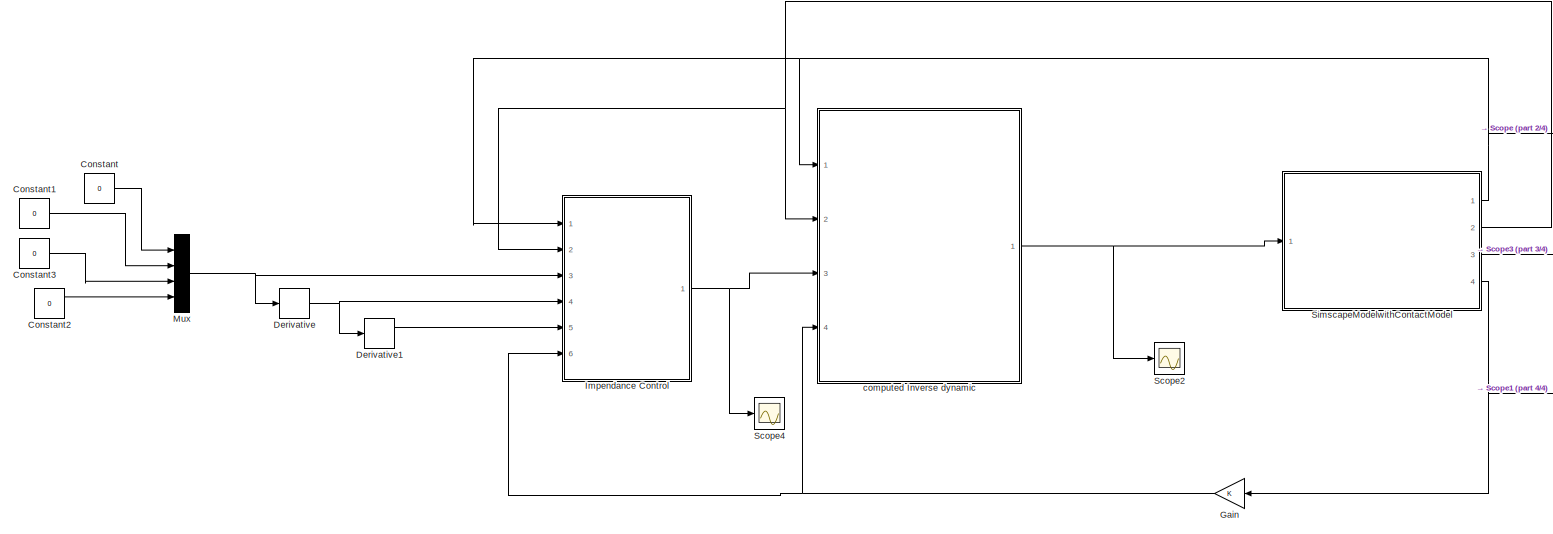
[diagram: root canvas - part 1/4, most of the canvas]
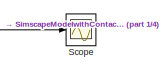
[diagram: root canvas - part 2/4, top right region]
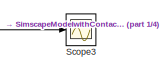
[diagram: root canvas - part 3/4, middle right region]
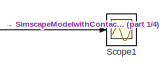
[diagram: root canvas - part 4/4, bottom right region]
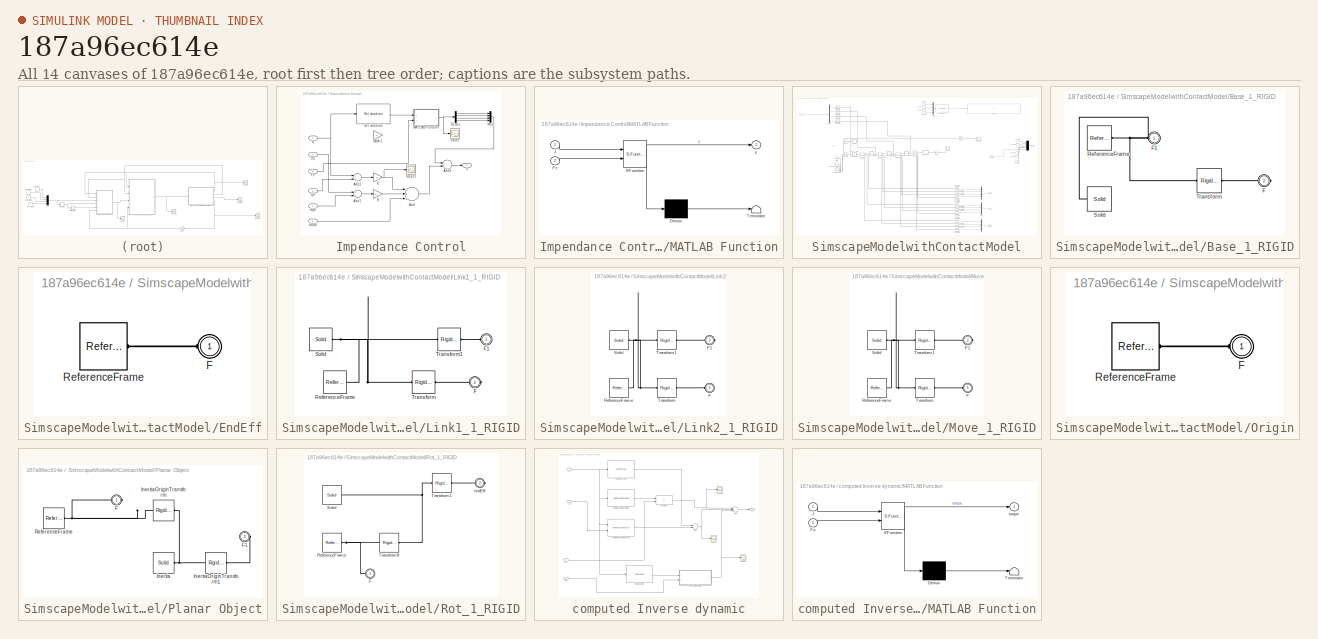
[diagram: thumbnail index - all 14 canvases of the model, root first then tree order]
MODEL slx_187a96ec614e
KIND model
CONFIG AbsTol = auto
CONFIG EnableMultiTasking = off
CONFIG FixedStep = auto
CONFIG MaxStep = 0.001
CONFIG MinStep = 0.0001
CONFIG RelTol = 1e-3
CONFIG SampleTimeConstraint = Unconstrained
CONFIG Solver = VariableStepAuto
CONFIG SolverName = VariableStepAuto
CONFIG StartTime = 0.0
CONFIG StopTime = 10.0
WORKSPACE source: MAT-file member
WORKSPACE Ball: struct (value not decoded)
BLOCK [Constant] Constant
  Value = 0
BLOCK [Constant] Constant1
  Value = 0
BLOCK [Constant] Constant2
  Value = 0
BLOCK [Constant] Constant3
  Value = 0
BLOCK [Derivative] Derivative
BLOCK [Derivative] Derivative1
BLOCK [Gain] Gain
  OutDataTypeStr = Inherit: Inherit via internal rule
  ParamDataTypeStr = Inherit: Inherit via internal rule
  SaturateOnIntegerOverflow = off
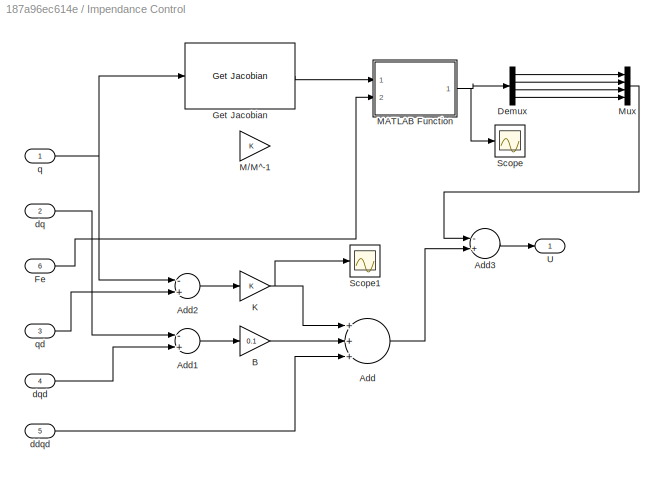
BLOCK [SubSystem] Impendance Control
  Ports = [6, 1]
  RequestExecContextInheritance = off
BLOCK [Sum] Impendance Control/Add
  InputSameDT = off
  Inputs = +++
  OutDataTypeStr = Inherit: Inherit via internal rule
  Ports = [3, 1]
  SaturateOnIntegerOverflow = off
BLOCK [Sum] Impendance Control/Add1
  InputSameDT = off
  Inputs = -+
  OutDataTypeStr = Inherit: Inherit via internal rule
  Ports = [2, 1]
  SaturateOnIntegerOverflow = off
BLOCK [Sum] Impendance Control/Add2
  InputSameDT = off
  Inputs = -+
  OutDataTypeStr = Inherit: Inherit via internal rule
  Ports = [2, 1]
  SaturateOnIntegerOverflow = off
BLOCK [Sum] Impendance Control/Add3
  InputSameDT = off
  Inputs = -+
  OutDataTypeStr = Inherit: Inherit via internal rule
  Ports = [2, 1]
  SaturateOnIntegerOverflow = off
BLOCK [Gain] Impendance Control/B
  Gain = 0.1
  OutDataTypeStr = Inherit: Inherit via internal rule
  ParamDataTypeStr = Inherit: Inherit via internal rule
  SaturateOnIntegerOverflow = off
BLOCK [Demux] Impendance Control/Demux
  DisplayOption = bar
  Ports = [1, 4]
BLOCK [Inport] Impendance Control/Fe
  IconDisplay = Port number
  Port = 6
BLOCK [Reference] Impendance Control/Get Jacobian  REF=robotmaniplib/Get Jacobian
  Ports = [1, 1]
  SourceBlock = robotmaniplib/Get Jacobian
  SourceProductName = Robotics System Toolbox
  SourceType = Get Jacobian
BLOCK [Gain] Impendance Control/K
  OutDataTypeStr = Inherit: Inherit via internal rule
  ParamDataTypeStr = Inherit: Inherit via internal rule
  SaturateOnIntegerOverflow = off
BLOCK [Gain] Impendance Control/M//M^-1
  OutDataTypeStr = Inherit: Inherit via internal rule
  ParamDataTypeStr = Inherit: Inherit via internal rule
  SaturateOnIntegerOverflow = off
BLOCK [SubSystem] Impendance Control/MATLAB Function
  ErrorFcn = Stateflow.Translate.translate
  PermitHierarchicalResolution = ExplicitOnly
  Ports = [2, 1]
  RequestExecContextInheritance = off
  SFBlockType = MATLAB Function
  TreatAsAtomicUnit = on
BLOCK [Demux] Impendance Control/MATLAB Function/ Demux 
  Outputs = 1
  Ports = [1, 1]
BLOCK [S-Function] Impendance Control/MATLAB Function/ SFunction 
  EnableBusSupport = on
  FunctionName = sf_sfun
  PortCounts = [2 2]
  Ports = [2, 2]
  SFcnIsStateOwnerBlock = off
  SFunctionDeploymentMode = off
  Tag = Stateflow S-Function Test 1
BLOCK [Terminator] Impendance Control/MATLAB Function/ Terminator 
BLOCK [Inport] Impendance Control/MATLAB Function/Fe
  IconDisplay = Port number
  Port = 2
BLOCK [Inport] Impendance Control/MATLAB Function/J
  IconDisplay = Port number
BLOCK [Outport] Impendance Control/MATLAB Function/y
  IconDisplay = Port number
BLOCK [Mux] Impendance Control/Mux
  DisplayOption = bar
  Ports = [4, 1]
BLOCK [Scope] Impendance Control/Scope
  Floating = off
  NumInputPorts = 1
  Ports = [1]
  ScopeSpecificationString = Simulink.scopes.TimeScopeBlockCfg('CurrentConfiguration', extmgr.ConfigurationSet(extmgr.Configuration('Core','General UI',true),extmgr.Configuration('Core','Source UI',true),extmgr.Configuration('Sources','WiredSimulink',true,'DataLoggingVariableName','ScopeData2'),extmgr.Configuration('Visuals','Time Domain',true,'SerializedDisplays',{struct('MinYLimReal','-0.19608','MaxYLimReal','0.19172','YLab...<+1480ch>
BLOCK [Scope] Impendance Control/Scope1
  Floating = off
  NumInputPorts = 1
  Ports = [1]
  ScopeSpecificationString = Simulink.scopes.TimeScopeBlockCfg('CurrentConfiguration', extmgr.ConfigurationSet(extmgr.Configuration('Core','General UI',true),extmgr.Configuration('Core','Source UI',true),extmgr.Configuration('Sources','WiredSimulink',true,'DataLoggingVariableName','ScopeData9'),extmgr.Configuration('Visuals','Time Domain',true,'SerializedDisplays',{struct('MinYLimReal','-66398.60968','MaxYLimReal','597578.607...<+1439ch>
BLOCK [Outport] Impendance Control/U
  IconDisplay = Port number
BLOCK [Inport] Impendance Control/ddqd
  IconDisplay = Port number
  Port = 5
BLOCK [Inport] Impendance Control/dq
  IconDisplay = Port number
  Port = 2
BLOCK [Inport] Impendance Control/dqd
  IconDisplay = Port number
  Port = 4
BLOCK [Inport] Impendance Control/q
  IconDisplay = Port number
BLOCK [Inport] Impendance Control/qd
  IconDisplay = Port number
  Port = 3
BLOCK [Mux] Mux
  DisplayOption = bar
  Ports = [4, 1]
BLOCK [Scope] Scope
  Floating = off
  NumInputPorts = 1
  Ports = [1]
  ScopeSpecificationString = Simulink.scopes.TimeScopeBlockCfg('CurrentConfiguration', extmgr.ConfigurationSet(extmgr.Configuration('Core','General UI',true),extmgr.Configuration('Core','Source UI',true),extmgr.Configuration('Sources','WiredSimulink',true),extmgr.Configuration('Visuals','Time Domain',true,'SerializedDisplays',{struct('MinYLimReal','-1.06131','MaxYLimReal','9.55177','YLabelReal','','MinYLimMag','0.00000','MaxY...<+1534ch>
BLOCK [Scope] Scope1
  Floating = off
  NumInputPorts = 1
  Ports = [1]
  ScopeSpecificationString = Simulink.scopes.TimeScopeBlockCfg('CurrentConfiguration', extmgr.ConfigurationSet(extmgr.Configuration('Core','General UI',true),extmgr.Configuration('Core','Source UI',true),extmgr.Configuration('Sources','WiredSimulink',true,'DataLoggingVariableName','ScopeData1'),extmgr.Configuration('Visuals','Time Domain',true,'SerializedDisplays',{struct('MinYLimReal','-1.00000','MaxYLimReal','1.00000','YLab...<+1645ch>
BLOCK [Scope] Scope2
  Floating = off
  NumInputPorts = 1
  Ports = [1]
  ScopeSpecificationString = Simulink.scopes.TimeScopeBlockCfg('CurrentConfiguration', extmgr.ConfigurationSet(extmgr.Configuration('Core','General UI',true),extmgr.Configuration('Core','Source UI',true),extmgr.Configuration('Sources','WiredSimulink',true,'DataLoggingVariableName','ScopeData5'),extmgr.Configuration('Visuals','Time Domain',true,'SerializedDisplays',{struct('MinYLimReal','-17264965646.85832','MaxYLimReal','2694...<+1602ch>
BLOCK [Scope] Scope3
  Floating = off
  NumInputPorts = 1
  Ports = [1]
  ScopeSpecificationString = Simulink.scopes.TimeScopeBlockCfg('CurrentConfiguration', extmgr.ConfigurationSet(extmgr.Configuration('Core','General UI',true),extmgr.Configuration('Core','Source UI',true),extmgr.Configuration('Sources','WiredSimulink',true,'DataLoggingVariableName','ScopeData3'),extmgr.Configuration('Visuals','Time Domain',true,'SerializedDisplays',{struct('MinYLimReal','-303.7796','MaxYLimReal','2734.01643','...<+1589ch>
BLOCK [Scope] Scope4
  Floating = off
  NumInputPorts = 1
  Ports = [1]
  ScopeSpecificationString = Simulink.scopes.TimeScopeBlockCfg('CurrentConfiguration', extmgr.ConfigurationSet(extmgr.Configuration('Core','General UI',true),extmgr.Configuration('Core','Source UI',true),extmgr.Configuration('Sources','WiredSimulink',true,'DataLoggingVariableName','ScopeData8'),extmgr.Configuration('Visuals','Time Domain',true,'SerializedDisplays',{struct('MinYLimReal','-71109929606.43785','MaxYLimReal','1109...<+1580ch>
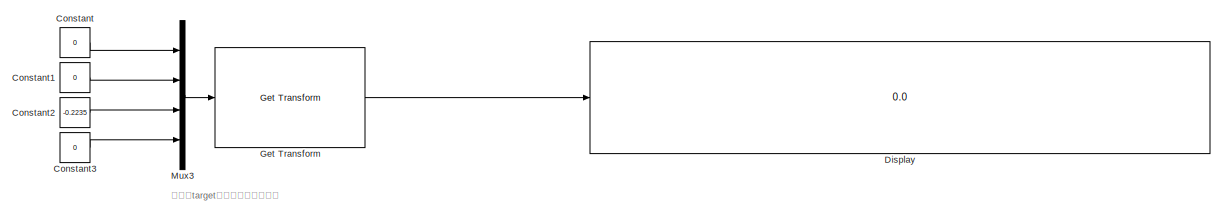
[diagram: SimscapeModelwithContactModel - part 1/4, top right region]
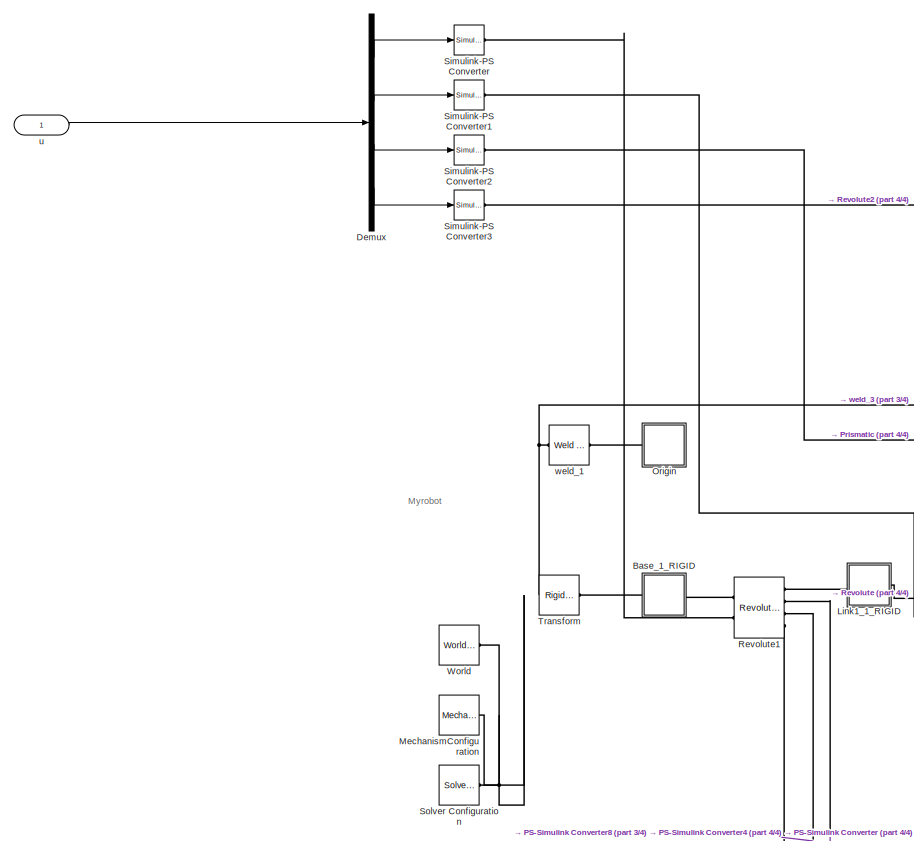
[diagram: SimscapeModelwithContactModel - part 2/4, top left region]
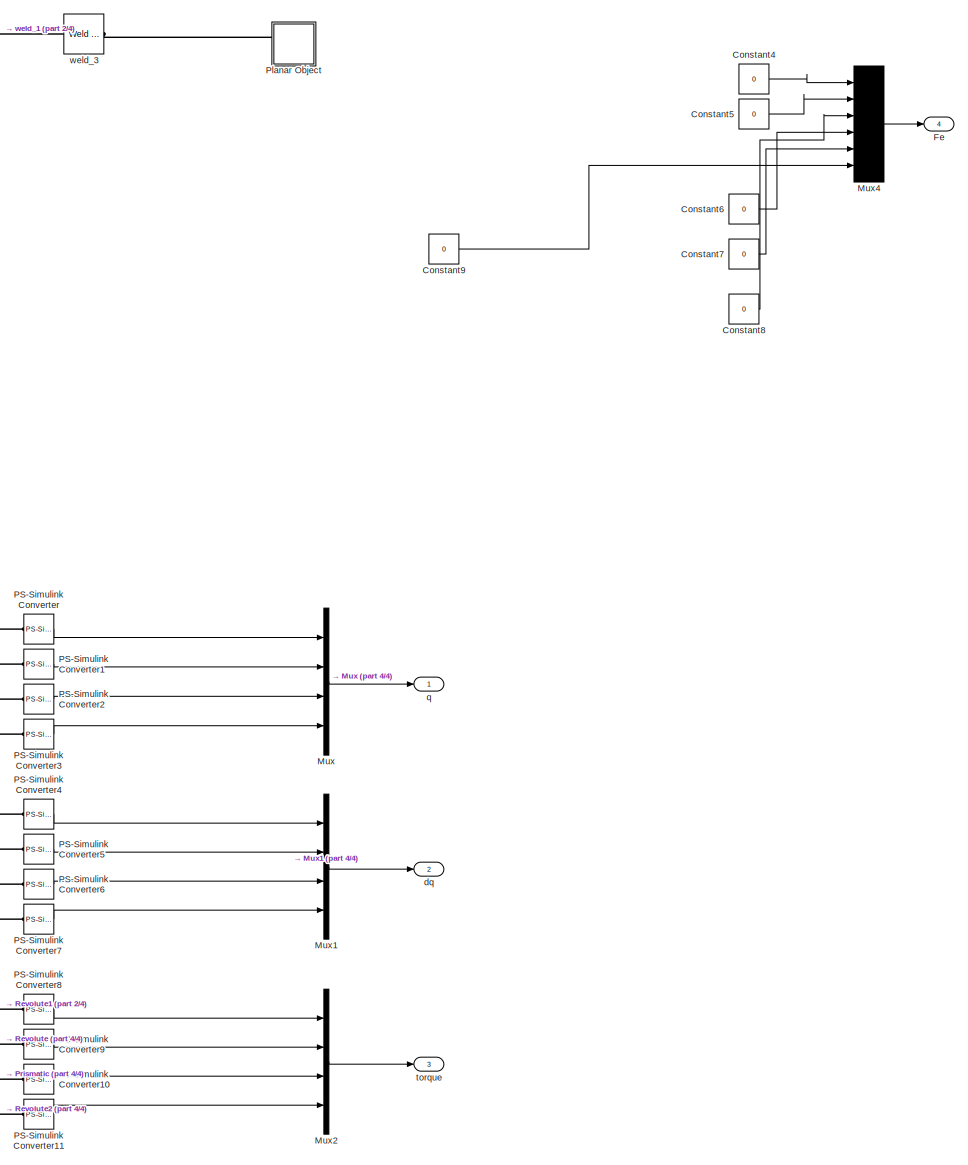
[diagram: SimscapeModelwithContactModel - part 3/4, right side, full height]
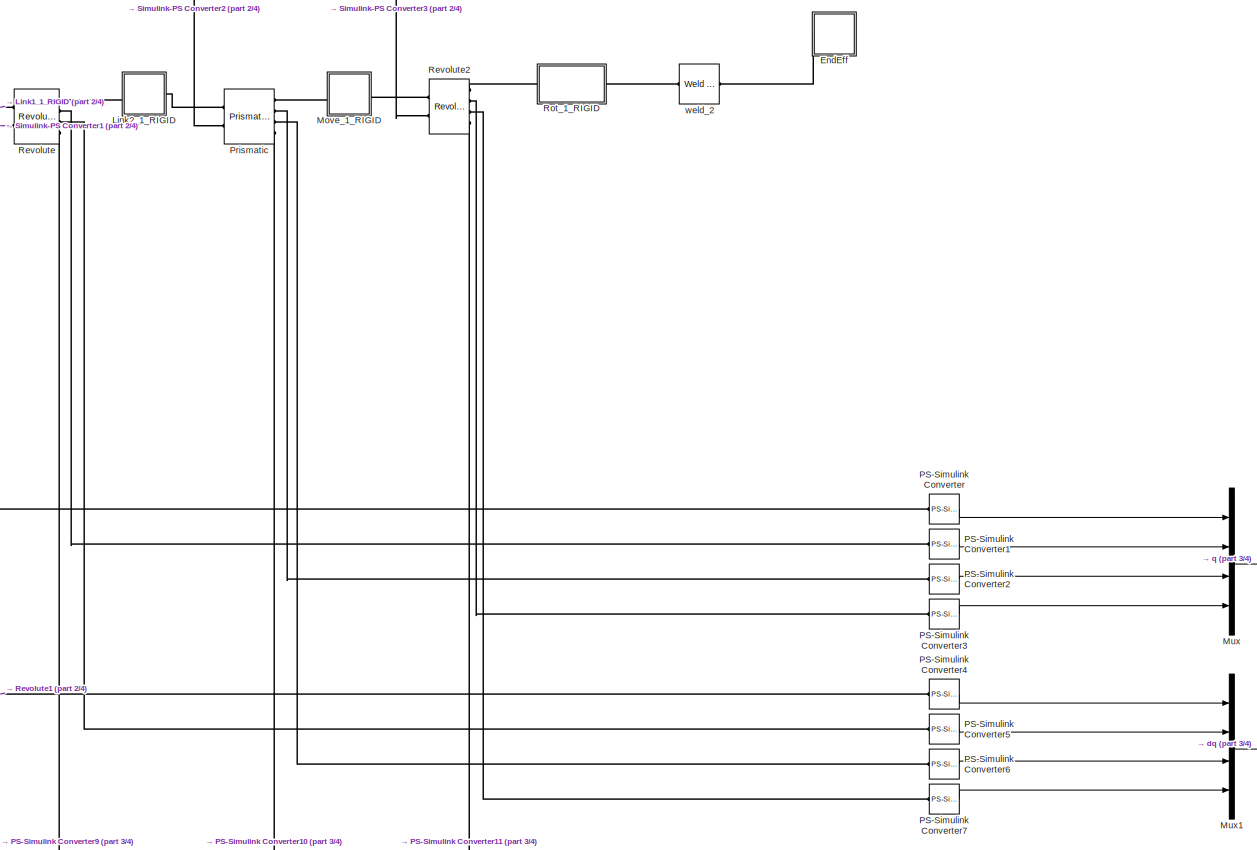
[diagram: SimscapeModelwithContactModel - part 4/4, central region]
BLOCK [SubSystem] SimscapeModelwithContactModel
  Ports = [1, 4]
  RequestExecContextInheritance = off
BLOCK [SubSystem] SimscapeModelwithContactModel/Base_1_RIGID
  Ports = [0, 0, 0, 0, 0, 1, 1]
  RequestExecContextInheritance = off
BLOCK [PMIOPort] SimscapeModelwithContactModel/Base_1_RIGID/F
  Port = 2
  Side = Right
BLOCK [PMIOPort] SimscapeModelwithContactModel/Base_1_RIGID/F1
  Side = Left
BLOCK [Reference] SimscapeModelwithContactModel/Base_1_RIGID/ReferenceFrame  REF=sm_lib/Frames and
Transforms/Reference
Frame
  Ports = [0, 0, 0, 0, 0, 0, 1]
  SourceBlock = sm_lib/Frames and\nTransforms/Reference\nFrame
  SourceProductBaseCode = MS
  SourceProductName = Simscape Multibody
  SourceType = Reference\nFrame
BLOCK [Reference] SimscapeModelwithContactModel/Base_1_RIGID/Solid  REF=sm_lib/Body Elements/Solid
  Ports = [0, 0, 0, 0, 0, 1]
  SourceBlock = sm_lib/Body Elements/Solid
  SourceProductBaseCode = MS
  SourceProductName = Simscape Multibody
  SourceType = Solid
BLOCK [Reference] SimscapeModelwithContactModel/Base_1_RIGID/Transform  REF=sm_lib/Frames and
Transforms/Rigid
Transform
  Ports = [0, 0, 0, 0, 0, 1, 1]
  SourceBlock = sm_lib/Frames and\nTransforms/Rigid\nTransform
  SourceProductBaseCode = MS
  SourceProductName = Simscape Multibody
  SourceType = Rigid\nTransform
BLOCK [Constant] SimscapeModelwithContactModel/Constant
  Value = 0
BLOCK [Constant] SimscapeModelwithContactModel/Constant1
  Value = 0
BLOCK [Constant] SimscapeModelwithContactModel/Constant2
  Value = -0.2235
BLOCK [Constant] SimscapeModelwithContactModel/Constant3
  Value = 0
BLOCK [Constant] SimscapeModelwithContactModel/Constant4
  Value = 0
BLOCK [Constant] SimscapeModelwithContactModel/Constant5
  Value = 0
BLOCK [Constant] SimscapeModelwithContactModel/Constant6
  Value = 0
BLOCK [Constant] SimscapeModelwithContactModel/Constant7
  Value = 0
BLOCK [Constant] SimscapeModelwithContactModel/Constant8
  Value = 0
BLOCK [Constant] SimscapeModelwithContactModel/Constant9
  Value = 0
BLOCK [Demux] SimscapeModelwithContactModel/Demux
  DisplayOption = bar
  Ports = [1, 4]
BLOCK [Display] SimscapeModelwithContactModel/Display
  Decimation = 1
  Format = long
  Ports = [1]
BLOCK [SubSystem] SimscapeModelwithContactModel/EndEff
  Ports = [0, 0, 0, 0, 0, 1]
  RequestExecContextInheritance = off
BLOCK [PMIOPort] SimscapeModelwithContactModel/EndEff/F
  Side = Left
BLOCK [Reference] SimscapeModelwithContactModel/EndEff/ReferenceFrame  REF=sm_lib/Frames and
Transforms/Reference
Frame
  Ports = [0, 0, 0, 0, 0, 0, 1]
  SourceBlock = sm_lib/Frames and\nTransforms/Reference\nFrame
  SourceProductBaseCode = MS
  SourceProductName = Simscape Multibody
  SourceType = Reference\nFrame
BLOCK [Outport] SimscapeModelwithContactModel/Fe
  IconDisplay = Port number
  Port = 4
BLOCK [Reference] SimscapeModelwithContactModel/Get Transform  REF=robotmaniplib/Get Transform
  Ports = [1, 1]
  SourceBlock = robotmaniplib/Get Transform
  SourceProductBaseCode = RO
  SourceProductName = Robotics System Toolbox
  SourceType = Get Transform
BLOCK [SubSystem] SimscapeModelwithContactModel/Link1_1_RIGID
  Ports = [0, 0, 0, 0, 0, 1, 1]
  RequestExecContextInheritance = off
BLOCK [PMIOPort] SimscapeModelwithContactModel/Link1_1_RIGID/F
  Port = 2
  Side = Right
BLOCK [PMIOPort] SimscapeModelwithContactModel/Link1_1_RIGID/F1
  Side = Left
BLOCK [Reference] SimscapeModelwithContactModel/Link1_1_RIGID/ReferenceFrame  REF=sm_lib/Frames and
Transforms/Reference
Frame
  Ports = [0, 0, 0, 0, 0, 0, 1]
  SourceBlock = sm_lib/Frames and\nTransforms/Reference\nFrame
  SourceProductBaseCode = MS
  SourceProductName = Simscape Multibody
  SourceType = Reference\nFrame
BLOCK [Reference] SimscapeModelwithContactModel/Link1_1_RIGID/Solid  REF=sm_lib/Body Elements/Solid
  Ports = [0, 0, 0, 0, 0, 0, 1]
  SourceBlock = sm_lib/Body Elements/Solid
  SourceProductBaseCode = MS
  SourceProductName = Simscape Multibody
  SourceType = Solid
BLOCK [Reference] SimscapeModelwithContactModel/Link1_1_RIGID/Transform  REF=sm_lib/Frames and
Transforms/Rigid
Transform
  Ports = [0, 0, 0, 0, 0, 1, 1]
  SourceBlock = sm_lib/Frames and\nTransforms/Rigid\nTransform
  SourceProductBaseCode = MS
  SourceProductName = Simscape Multibody
  SourceType = Rigid\nTransform
BLOCK [Reference] SimscapeModelwithContactModel/Link1_1_RIGID/Transform1  REF=sm_lib/Frames and
Transforms/Rigid
Transform
  Ports = [0, 0, 0, 0, 0, 1, 1]
  SourceBlock = sm_lib/Frames and\nTransforms/Rigid\nTransform
  SourceProductBaseCode = MS
  SourceProductName = Simscape Multibody
  SourceType = Rigid\nTransform
BLOCK [SubSystem] SimscapeModelwithContactModel/Link2_1_RIGID
  Ports = [0, 0, 0, 0, 0, 1, 1]
  RequestExecContextInheritance = off
BLOCK [PMIOPort] SimscapeModelwithContactModel/Link2_1_RIGID/F
  Side = Left
BLOCK [PMIOPort] SimscapeModelwithContactModel/Link2_1_RIGID/F1
  Port = 2
  Side = Right
BLOCK [Reference] SimscapeModelwithContactModel/Link2_1_RIGID/ReferenceFrame  REF=sm_lib/Frames and
Transforms/Reference
Frame
  Ports = [0, 0, 0, 0, 0, 0, 1]
  SourceBlock = sm_lib/Frames and\nTransforms/Reference\nFrame
  SourceProductBaseCode = MS
  SourceProductName = Simscape Multibody
  SourceType = Reference\nFrame
BLOCK [Reference] SimscapeModelwithContactModel/Link2_1_RIGID/Solid  REF=sm_lib/Body Elements/Solid
  Ports = [0, 0, 0, 0, 0, 0, 1]
  SourceBlock = sm_lib/Body Elements/Solid
  SourceProductBaseCode = MS
  SourceProductName = Simscape Multibody
  SourceType = Solid
BLOCK [Reference] SimscapeModelwithContactModel/Link2_1_RIGID/Transform  REF=sm_lib/Frames and
Transforms/Rigid
Transform
  Ports = [0, 0, 0, 0, 0, 1, 1]
  SourceBlock = sm_lib/Frames and\nTransforms/Rigid\nTransform
  SourceProductBaseCode = MS
  SourceProductName = Simscape Multibody
  SourceType = Rigid\nTransform
BLOCK [Reference] SimscapeModelwithContactModel/Link2_1_RIGID/Transform1  REF=sm_lib/Frames and
Transforms/Rigid
Transform
  Ports = [0, 0, 0, 0, 0, 1, 1]
  SourceBlock = sm_lib/Frames and\nTransforms/Rigid\nTransform
  SourceProductBaseCode = MS
  SourceProductName = Simscape Multibody
  SourceType = Rigid\nTransform
BLOCK [Reference] SimscapeModelwithContactModel/MechanismConfiguration  REF=sm_lib/Utilities/Mechanism
Configuration
  Ports = [0, 0, 0, 0, 0, 0, 1]
  SourceBlock = sm_lib/Utilities/Mechanism\nConfiguration
  SourceProductBaseCode = MS
  SourceProductName = Simscape Multibody
  SourceType = Mechanism\nConfiguration
BLOCK [SubSystem] SimscapeModelwithContactModel/Move_1_RIGID
  Ports = [0, 0, 0, 0, 0, 1, 1]
  RequestExecContextInheritance = off
BLOCK [PMIOPort] SimscapeModelwithContactModel/Move_1_RIGID/F
  Side = Left
BLOCK [PMIOPort] SimscapeModelwithContactModel/Move_1_RIGID/F1
  Port = 2
  Side = Right
BLOCK [Reference] SimscapeModelwithContactModel/Move_1_RIGID/ReferenceFrame  REF=sm_lib/Frames and
Transforms/Reference
Frame
  Ports = [0, 0, 0, 0, 0, 0, 1]
  SourceBlock = sm_lib/Frames and\nTransforms/Reference\nFrame
  SourceProductBaseCode = MS
  SourceProductName = Simscape Multibody
  SourceType = Reference\nFrame
BLOCK [Reference] SimscapeModelwithContactModel/Move_1_RIGID/Solid  REF=sm_lib/Body Elements/Solid
  Ports = [0, 0, 0, 0, 0, 0, 1]
  SourceBlock = sm_lib/Body Elements/Solid
  SourceProductBaseCode = MS
  SourceProductName = Simscape Multibody
  SourceType = Solid
BLOCK [Reference] SimscapeModelwithContactModel/Move_1_RIGID/Transform  REF=sm_lib/Frames and
Transforms/Rigid
Transform
  Ports = [0, 0, 0, 0, 0, 1, 1]
  SourceBlock = sm_lib/Frames and\nTransforms/Rigid\nTransform
  SourceProductBaseCode = MS
  SourceProductName = Simscape Multibody
  SourceType = Rigid\nTransform
BLOCK [Reference] SimscapeModelwithContactModel/Move_1_RIGID/Transform1  REF=sm_lib/Frames and
Transforms/Rigid
Transform
  Ports = [0, 0, 0, 0, 0, 1, 1]
  SourceBlock = sm_lib/Frames and\nTransforms/Rigid\nTransform
  SourceProductBaseCode = MS
  SourceProductName = Simscape Multibody
  SourceType = Rigid\nTransform
BLOCK [Mux] SimscapeModelwithContactModel/Mux
  DisplayOption = bar
  Ports = [4, 1]
BLOCK [Mux] SimscapeModelwithContactModel/Mux1
  DisplayOption = bar
  Ports = [4, 1]
BLOCK [Mux] SimscapeModelwithContactModel/Mux2
  DisplayOption = bar
  Ports = [4, 1]
BLOCK [Mux] SimscapeModelwithContactModel/Mux3
  DisplayOption = bar
  Ports = [4, 1]
BLOCK [Mux] SimscapeModelwithContactModel/Mux4
  DisplayOption = bar
  Inputs = 6
  Ports = [6, 1]
BLOCK [SubSystem] SimscapeModelwithContactModel/Origin
  Ports = [0, 0, 0, 0, 0, 1]
  RequestExecContextInheritance = off
BLOCK [PMIOPort] SimscapeModelwithContactModel/Origin/F
  Side = Left
BLOCK [Reference] SimscapeModelwithContactModel/Origin/ReferenceFrame  REF=sm_lib/Frames and
Transforms/Reference
Frame
  Ports = [0, 0, 0, 0, 0, 0, 1]
  SourceBlock = sm_lib/Frames and\nTransforms/Reference\nFrame
  SourceProductBaseCode = MS
  SourceProductName = Simscape Multibody
  SourceType = Reference\nFrame
BLOCK [Reference] SimscapeModelwithContactModel/PS-Simulink Converter  REF=nesl_utility/PS-Simulink
Converter
  Ports = [0, 1, 0, 0, 0, 1]
  SourceBlock = nesl_utility/PS-Simulink\nConverter
  SourceProductBaseCode = SS
  SourceProductName = Simscape
  SourceType = PS-Simulink\nConverter
BLOCK [Reference] SimscapeModelwithContactModel/PS-Simulink Converter1  REF=nesl_utility/PS-Simulink
Converter
  Ports = [0, 1, 0, 0, 0, 1]
  SourceBlock = nesl_utility/PS-Simulink\nConverter
  SourceProductBaseCode = SS
  SourceProductName = Simscape
  SourceType = PS-Simulink\nConverter
BLOCK [Reference] SimscapeModelwithContactModel/PS-Simulink Converter10  REF=nesl_utility/PS-Simulink
Converter
  Ports = [0, 1, 0, 0, 0, 1]
  SourceBlock = nesl_utility/PS-Simulink\nConverter
  SourceProductBaseCode = SS
  SourceProductName = Simscape
  SourceType = PS-Simulink\nConverter
BLOCK [Reference] SimscapeModelwithContactModel/PS-Simulink Converter11  REF=nesl_utility/PS-Simulink
Converter
  Ports = [0, 1, 0, 0, 0, 1]
  SourceBlock = nesl_utility/PS-Simulink\nConverter
  SourceProductBaseCode = SS
  SourceProductName = Simscape
  SourceType = PS-Simulink\nConverter
BLOCK [Reference] SimscapeModelwithContactModel/PS-Simulink Converter2  REF=nesl_utility/PS-Simulink
Converter
  Ports = [0, 1, 0, 0, 0, 1]
  SourceBlock = nesl_utility/PS-Simulink\nConverter
  SourceProductBaseCode = SS
  SourceProductName = Simscape
  SourceType = PS-Simulink\nConverter
BLOCK [Reference] SimscapeModelwithContactModel/PS-Simulink Converter3  REF=nesl_utility/PS-Simulink
Converter
  Ports = [0, 1, 0, 0, 0, 1]
  SourceBlock = nesl_utility/PS-Simulink\nConverter
  SourceProductBaseCode = SS
  SourceProductName = Simscape
  SourceType = PS-Simulink\nConverter
BLOCK [Reference] SimscapeModelwithContactModel/PS-Simulink Converter4  REF=nesl_utility/PS-Simulink
Converter
  Ports = [0, 1, 0, 0, 0, 1]
  SourceBlock = nesl_utility/PS-Simulink\nConverter
  SourceProductBaseCode = SS
  SourceProductName = Simscape
  SourceType = PS-Simulink\nConverter
BLOCK [Reference] SimscapeModelwithContactModel/PS-Simulink Converter5  REF=nesl_utility/PS-Simulink
Converter
  Ports = [0, 1, 0, 0, 0, 1]
  SourceBlock = nesl_utility/PS-Simulink\nConverter
  SourceProductBaseCode = SS
  SourceProductName = Simscape
  SourceType = PS-Simulink\nConverter
BLOCK [Reference] SimscapeModelwithContactModel/PS-Simulink Converter6  REF=nesl_utility/PS-Simulink
Converter
  Ports = [0, 1, 0, 0, 0, 1]
  SourceBlock = nesl_utility/PS-Simulink\nConverter
  SourceProductBaseCode = SS
  SourceProductName = Simscape
  SourceType = PS-Simulink\nConverter
BLOCK [Reference] SimscapeModelwithContactModel/PS-Simulink Converter7  REF=nesl_utility/PS-Simulink
Converter
  Ports = [0, 1, 0, 0, 0, 1]
  SourceBlock = nesl_utility/PS-Simulink\nConverter
  SourceProductBaseCode = SS
  SourceProductName = Simscape
  SourceType = PS-Simulink\nConverter
BLOCK [Reference] SimscapeModelwithContactModel/PS-Simulink Converter8  REF=nesl_utility/PS-Simulink
Converter
  Ports = [0, 1, 0, 0, 0, 1]
  SourceBlock = nesl_utility/PS-Simulink\nConverter
  SourceProductBaseCode = SS
  SourceProductName = Simscape
  SourceType = PS-Simulink\nConverter
BLOCK [Reference] SimscapeModelwithContactModel/PS-Simulink Converter9  REF=nesl_utility/PS-Simulink
Converter
  Ports = [0, 1, 0, 0, 0, 1]
  SourceBlock = nesl_utility/PS-Simulink\nConverter
  SourceProductBaseCode = SS
  SourceProductName = Simscape
  SourceType = PS-Simulink\nConverter
BLOCK [SubSystem] SimscapeModelwithContactModel/Planar Object
  Ports = [0, 0, 0, 0, 0, 2]
  RequestExecContextInheritance = off
BLOCK [PMIOPort] SimscapeModelwithContactModel/Planar Object/F
  Side = Left
BLOCK [PMIOPort] SimscapeModelwithContactModel/Planar Object/F1
  Port = 2
  Side = Left
BLOCK [Reference] SimscapeModelwithContactModel/Planar Object/Inertia  REF=sm_lib/Body Elements/Solid
  Ports = [0, 0, 0, 0, 0, 0, 1]
  SourceBlock = sm_lib/Body Elements/Solid
  SourceProductBaseCode = MS
  SourceProductName = Simscape Multibody
  SourceType = Solid
BLOCK [Reference] SimscapeModelwithContactModel/Planar Object/InertiaOriginTransform  REF=sm_lib/Frames and
Transforms/Rigid
Transform
  Ports = [0, 0, 0, 0, 0, 1, 1]
  SourceBlock = sm_lib/Frames and\nTransforms/Rigid\nTransform
  SourceProductBaseCode = MS
  SourceProductName = Simscape Multibody
  SourceType = Rigid\nTransform
BLOCK [Reference] SimscapeModelwithContactModel/Planar Object/InertiaOriginTransform1  REF=sm_lib/Frames and
Transforms/Rigid
Transform
  Ports = [0, 0, 0, 0, 0, 1, 1]
  SourceBlock = sm_lib/Frames and\nTransforms/Rigid\nTransform
  SourceProductBaseCode = MS
  SourceProductName = Simscape Multibody
  SourceType = Rigid\nTransform
BLOCK [Reference] SimscapeModelwithContactModel/Planar Object/ReferenceFrame  REF=sm_lib/Frames and
Transforms/Reference
Frame
  Ports = [0, 0, 0, 0, 0, 0, 1]
  SourceBlock = sm_lib/Frames and\nTransforms/Reference\nFrame
  SourceProductBaseCode = MS
  SourceProductName = Simscape Multibody
  SourceType = Reference\nFrame
BLOCK [Reference] SimscapeModelwithContactModel/Prismatic  REF=sm_lib/Joints/Prismatic
Joint
  Ports = [0, 0, 0, 0, 0, 2, 4]
  SourceBlock = sm_lib/Joints/Prismatic\nJoint
  SourceProductBaseCode = MS
  SourceProductName = Simscape Multibody
  SourceType = Prismatic\nJoint
BLOCK [Reference] SimscapeModelwithContactModel/Revolute  REF=sm_lib/Joints/Revolute Joint
  Ports = [0, 0, 0, 0, 0, 2, 4]
  SourceBlock = sm_lib/Joints/Revolute Joint
  SourceProductBaseCode = MS
  SourceProductName = Simscape Multibody
  SourceType = Revolute Joint
BLOCK [Reference] SimscapeModelwithContactModel/Revolute1  REF=sm_lib/Joints/Revolute Joint
  Ports = [0, 0, 0, 0, 0, 2, 4]
  SourceBlock = sm_lib/Joints/Revolute Joint
  SourceProductBaseCode = MS
  SourceProductName = Simscape Multibody
  SourceType = Revolute Joint
BLOCK [Reference] SimscapeModelwithContactModel/Revolute2  REF=sm_lib/Joints/Revolute Joint
  Ports = [0, 0, 0, 0, 0, 2, 4]
  SourceBlock = sm_lib/Joints/Revolute Joint
  SourceProductBaseCode = MS
  SourceProductName = Simscape Multibody
  SourceType = Revolute Joint
BLOCK [SubSystem] SimscapeModelwithContactModel/Rot_1_RIGID
  Ports = [0, 0, 0, 0, 0, 1, 1]
  RequestExecContextInheritance = off
BLOCK [PMIOPort] SimscapeModelwithContactModel/Rot_1_RIGID/F
  Side = Left
BLOCK [Reference] SimscapeModelwithContactModel/Rot_1_RIGID/ReferenceFrame  REF=sm_lib/Frames and
Transforms/Reference
Frame
  Ports = [0, 0, 0, 0, 0, 0, 1]
  SourceBlock = sm_lib/Frames and\nTransforms/Reference\nFrame
  SourceProductBaseCode = MS
  SourceProductName = Simscape Multibody
  SourceType = Reference\nFrame
BLOCK [Reference] SimscapeModelwithContactModel/Rot_1_RIGID/Solid  REF=sm_lib/Body Elements/Solid
  Ports = [0, 0, 0, 0, 0, 0, 1]
  SourceBlock = sm_lib/Body Elements/Solid
  SourceProductBaseCode = MS
  SourceProductName = Simscape Multibody
  SourceType = Solid
BLOCK [Reference] SimscapeModelwithContactModel/Rot_1_RIGID/Transform1  REF=sm_lib/Frames and
Transforms/Rigid
Transform
  Ports = [0, 0, 0, 0, 0, 1, 1]
  SourceBlock = sm_lib/Frames and\nTransforms/Rigid\nTransform
  SourceProductBaseCode = MS
  SourceProductName = Simscape Multibody
  SourceType = Rigid\nTransform
BLOCK [Reference] SimscapeModelwithContactModel/Rot_1_RIGID/Transform8  REF=sm_lib/Frames and
Transforms/Rigid
Transform
  Ports = [0, 0, 0, 0, 0, 1, 1]
  SourceBlock = sm_lib/Frames and\nTransforms/Rigid\nTransform
  SourceProductBaseCode = MS
  SourceProductName = Simscape Multibody
  SourceType = Rigid\nTransform
BLOCK [PMIOPort] SimscapeModelwithContactModel/Rot_1_RIGID/endEff
  Port = 2
  Side = Right
BLOCK [Reference] SimscapeModelwithContactModel/Simulink-PS Converter  REF=nesl_utility/Simulink-PS
Converter
  Ports = [1, 0, 0, 0, 0, 0, 1]
  SourceBlock = nesl_utility/Simulink-PS\nConverter
  SourceProductBaseCode = SS
  SourceProductName = Simscape
  SourceType = Simulink-PS\nConverter
BLOCK [Reference] SimscapeModelwithContactModel/Simulink-PS Converter1  REF=nesl_utility/Simulink-PS
Converter
  Ports = [1, 0, 0, 0, 0, 0, 1]
  SourceBlock = nesl_utility/Simulink-PS\nConverter
  SourceProductBaseCode = SS
  SourceProductName = Simscape
  SourceType = Simulink-PS\nConverter
BLOCK [Reference] SimscapeModelwithContactModel/Simulink-PS Converter2  REF=nesl_utility/Simulink-PS
Converter
  Ports = [1, 0, 0, 0, 0, 0, 1]
  SourceBlock = nesl_utility/Simulink-PS\nConverter
  SourceProductBaseCode = SS
  SourceProductName = Simscape
  SourceType = Simulink-PS\nConverter
BLOCK [Reference] SimscapeModelwithContactModel/Simulink-PS Converter3  REF=nesl_utility/Simulink-PS
Converter
  Ports = [1, 0, 0, 0, 0, 0, 1]
  SourceBlock = nesl_utility/Simulink-PS\nConverter
  SourceProductBaseCode = SS
  SourceProductName = Simscape
  SourceType = Simulink-PS\nConverter
BLOCK [Reference] SimscapeModelwithContactModel/Solver Configuration  REF=nesl_utility/Solver
Configuration
  Ports = [0, 0, 0, 0, 0, 0, 1]
  SourceBlock = nesl_utility/Solver\nConfiguration
  SourceProductBaseCode = SS
  SourceProductName = Simscape
  SourceType = Solver\nConfiguration
BLOCK [Reference] SimscapeModelwithContactModel/Transform  REF=sm_lib/Frames and
Transforms/Rigid
Transform
  Ports = [0, 0, 0, 0, 0, 1, 1]
  SourceBlock = sm_lib/Frames and\nTransforms/Rigid\nTransform
  SourceProductBaseCode = MS
  SourceProductName = Simscape Multibody
  SourceType = Rigid\nTransform
BLOCK [Reference] SimscapeModelwithContactModel/World  REF=sm_lib/Frames and
Transforms/World Frame
  Ports = [0, 0, 0, 0, 0, 0, 1]
  SourceBlock = sm_lib/Frames and\nTransforms/World Frame
  SourceProductBaseCode = MS
  SourceProductName = Simscape Multibody
  SourceType = World Frame
BLOCK [Outport] SimscapeModelwithContactModel/dq
  IconDisplay = Port number
  Port = 2
BLOCK [Outport] SimscapeModelwithContactModel/q
  IconDisplay = Port number
BLOCK [Outport] SimscapeModelwithContactModel/torque
  IconDisplay = Port number
  Port = 3
BLOCK [Inport] SimscapeModelwithContactModel/u
  IconDisplay = Port number
BLOCK [Reference] SimscapeModelwithContactModel/weld_1  REF=sm_lib/Joints/Weld Joint
  Ports = [0, 0, 0, 0, 0, 1, 1]
  SourceBlock = sm_lib/Joints/Weld Joint
  SourceProductBaseCode = MS
  SourceProductName = Simscape Multibody
  SourceType = Weld Joint
BLOCK [Reference] SimscapeModelwithContactModel/weld_2  REF=sm_lib/Joints/Weld Joint
  Ports = [0, 0, 0, 0, 0, 1, 1]
  SourceBlock = sm_lib/Joints/Weld Joint
  SourceProductBaseCode = MS
  SourceProductName = Simscape Multibody
  SourceType = Weld Joint
BLOCK [Reference] SimscapeModelwithContactModel/weld_3  REF=sm_lib/Joints/Weld Joint
  Ports = [0, 0, 0, 0, 0, 1, 1]
  SourceBlock = sm_lib/Joints/Weld Joint
  SourceProductBaseCode = MS
  SourceProductName = Simscape Multibody
  SourceType = Weld Joint
BLOCK [SubSystem] computed Inverse dynamic
  Ports = [4, 1]
  RequestExecContextInheritance = off
BLOCK [Sum] computed Inverse dynamic/Add1
  InputSameDT = off
  OutDataTypeStr = Inherit: Inherit via internal rule
  Ports = [2, 1]
  SaturateOnIntegerOverflow = off
BLOCK [Sum] computed Inverse dynamic/Add6
  InputSameDT = off
  Inputs = +++
  OutDataTypeStr = Inherit: Inherit via internal rule
  Ports = [3, 1]
  SaturateOnIntegerOverflow = off
BLOCK [Inport] computed Inverse dynamic/Fe
  IconDisplay = Port number
  Port = 4
BLOCK [Reference] computed Inverse dynamic/Get Jacobian  REF=robotmaniplib/Get Jacobian
  Ports = [1, 1]
  SourceBlock = robotmaniplib/Get Jacobian
  SourceProductName = Robotics System Toolbox
  SourceType = Get Jacobian
BLOCK [Reference] computed Inverse dynamic/Gravity Torque  REF=robotmaniplib/Gravity Torque
  Ports = [1, 1]
  SourceBlock = robotmaniplib/Gravity Torque
  SourceProductName = Robotics System Toolbox
  SourceType = Gravity Torque
BLOCK [Reference] computed Inverse dynamic/Joint Space Mass Matrix  REF=robotmaniplib/Joint Space Mass Matrix
  Ports = [1, 1]
  SourceBlock = robotmaniplib/Joint Space Mass Matrix
  SourceProductName = Robotics System Toolbox
  SourceType = Joint Space Mass Matrix
BLOCK [SubSystem] computed Inverse dynamic/MATLAB Function
  ErrorFcn = Stateflow.Translate.translate
  PermitHierarchicalResolution = ExplicitOnly
  Ports = [2, 1]
  RequestExecContextInheritance = off
  SFBlockType = MATLAB Function
  TreatAsAtomicUnit = on
BLOCK [Demux] computed Inverse dynamic/MATLAB Function/ Demux 
  Outputs = 1
  Ports = [1, 1]
BLOCK [S-Function] computed Inverse dynamic/MATLAB Function/ SFunction 
  EnableBusSupport = on
  FunctionName = sf_sfun
  PortCounts = [2 2]
  Ports = [2, 2]
  SFcnIsStateOwnerBlock = off
  SFunctionDeploymentMode = off
  Tag = Stateflow S-Function Test 2
BLOCK [Terminator] computed Inverse dynamic/MATLAB Function/ Terminator 
BLOCK [Inport] computed Inverse dynamic/MATLAB Function/Fe
  IconDisplay = Port number
  Port = 2
BLOCK [Inport] computed Inverse dynamic/MATLAB Function/J
  IconDisplay = Port number
BLOCK [Outport] computed Inverse dynamic/MATLAB Function/torque
  IconDisplay = Port number
BLOCK [Product] computed Inverse dynamic/Product
  InputSameDT = off
  Multiplication = Matrix(*)
  OutDataTypeStr = Inherit: Inherit via internal rule
  Ports = [2, 1]
  RndMeth = Floor
  SaturateOnIntegerOverflow = off
BLOCK [Scope] computed Inverse dynamic/Scope
  Floating = off
  NumInputPorts = 1
  Ports = [1]
  ScopeSpecificationString = Simulink.scopes.TimeScopeBlockCfg('CurrentConfiguration', extmgr.ConfigurationSet(extmgr.Configuration('Core','General UI',true),extmgr.Configuration('Core','Source UI',true),extmgr.Configuration('Sources','WiredSimulink',true,'DataLoggingVariableName','ScopeData4'),extmgr.Configuration('Visuals','Time Domain',true,'SerializedDisplays',{struct('MinYLimReal','-0.05272','MaxYLimReal','0.046','YLabel...<+1476ch>
BLOCK [Scope] computed Inverse dynamic/Scope1
  Floating = off
  NumInputPorts = 1
  Ports = [1]
  ScopeSpecificationString = Simulink.scopes.TimeScopeBlockCfg('CurrentConfiguration', extmgr.ConfigurationSet(extmgr.Configuration('Core','General UI',true),extmgr.Configuration('Core','Source UI',true),extmgr.Configuration('Sources','WiredSimulink',true,'DataLoggingVariableName','ScopeData6'),extmgr.Configuration('Visuals','Time Domain',true,'SerializedDisplays',{struct('MinYLimReal','-0.05272','MaxYLimReal','0.046','YLabel...<+1432ch>
BLOCK [Scope] computed Inverse dynamic/Scope2
  Floating = off
  NumInputPorts = 1
  Ports = [1]
  ScopeSpecificationString = Simulink.scopes.TimeScopeBlockCfg('CurrentConfiguration', extmgr.ConfigurationSet(extmgr.Configuration('Core','General UI',true),extmgr.Configuration('Core','Source UI',true),extmgr.Configuration('Sources','WiredSimulink',true,'DataLoggingVariableName','ScopeData7'),extmgr.Configuration('Visuals','Time Domain',true,'SerializedDisplays',{struct('MinYLimReal','-304.17816','MaxYLimReal','2731.46414',...<+1499ch>
BLOCK [Inport] computed Inverse dynamic/U
  IconDisplay = Port number
  Port = 3
BLOCK [Reference] computed Inverse dynamic/Velocity Product Torque  REF=robotmaniplib/Velocity Product Torque
  Ports = [2, 1]
  SourceBlock = robotmaniplib/Velocity Product Torque
  SourceProductName = Robotics System Toolbox
  SourceType = Velocity Product Torque
BLOCK [Inport] computed Inverse dynamic/dq
  IconDisplay = Port number
  Port = 2
BLOCK [Inport] computed Inverse dynamic/q
  IconDisplay = Port number
BLOCK [Outport] computed Inverse dynamic/u
  IconDisplay = Port number
ANNOTATION SimscapeModelwithContactModel: Myrobot
ANNOTATION SimscapeModelwithContactModel: 这里的target坐标系是世界坐标系
LINE Constant1:1 -> Mux:2
LINE Constant2:1 -> Mux:4
LINE Constant3:1 -> Mux:3
LINE Constant:1 -> Mux:1
LINE Derivative1:1 -> Impendance Control:5
NET Derivative:1 -> Derivative1:1, Impendance Control:4
NET Gain:1 -> Impendance Control:6, computed Inverse dynamic:4
LINE Impendance Control/Add1:1 -> Impendance Control/B:1
LINE Impendance Control/Add2:1 -> Impendance Control/K:1
LINE Impendance Control/Add3:1 -> Impendance Control/U:1
LINE Impendance Control/Add:1 -> Impendance Control/Add3:2
LINE Impendance Control/B:1 -> Impendance Control/Add:2
LINE Impendance Control/Demux:1 -> Impendance Control/Mux:1
LINE Impendance Control/Demux:2 -> Impendance Control/Mux:2
LINE Impendance Control/Demux:3 -> Impendance Control/Mux:3
LINE Impendance Control/Demux:4 -> Impendance Control/Mux:4
LINE Impendance Control/Fe:1 -> Impendance Control/MATLAB Function:2
LINE Impendance Control/Get Jacobian:1 -> Impendance Control/MATLAB Function:1
NET Impendance Control/K:1 -> Impendance Control/Add:1, Impendance Control/Scope1:1
NET Impendance Control/MATLAB Function:1 -> Impendance Control/Demux:1, Impendance Control/Scope:1
LINE Impendance Control/Mux:1 -> Impendance Control/Add3:1
LINE Impendance Control/ddqd:1 -> Impendance Control/Add:3
LINE Impendance Control/dq:1 -> Impendance Control/Add1:1
LINE Impendance Control/dqd:1 -> Impendance Control/Add1:2
NET Impendance Control/q:1 -> Impendance Control/Add2:1, Impendance Control/Get Jacobian:1
LINE Impendance Control/qd:1 -> Impendance Control/Add2:2
NET Impendance Control:1 -> Scope4:1, computed Inverse dynamic:3
NET Mux:1 -> Derivative:1, Impendance Control:3
LINE SimscapeModelwithContactModel/Constant1:1 -> SimscapeModelwithContactModel/Mux3:2
LINE SimscapeModelwithContactModel/Constant2:1 -> SimscapeModelwithContactModel/Mux3:3
LINE SimscapeModelwithContactModel/Constant3:1 -> SimscapeModelwithContactModel/Mux3:4
LINE SimscapeModelwithContactModel/Constant4:1 -> SimscapeModelwithContactModel/Mux4:1
LINE SimscapeModelwithContactModel/Constant5:1 -> SimscapeModelwithContactModel/Mux4:2
LINE SimscapeModelwithContactModel/Constant6:1 -> SimscapeModelwithContactModel/Mux4:4
LINE SimscapeModelwithContactModel/Constant7:1 -> SimscapeModelwithContactModel/Mux4:5
LINE SimscapeModelwithContactModel/Constant8:1 -> SimscapeModelwithContactModel/Mux4:3
LINE SimscapeModelwithContactModel/Constant9:1 -> SimscapeModelwithContactModel/Mux4:6
LINE SimscapeModelwithContactModel/Constant:1 -> SimscapeModelwithContactModel/Mux3:1
LINE SimscapeModelwithContactModel/Demux:1 -> SimscapeModelwithContactModel/Simulink-PS Converter:1
LINE SimscapeModelwithContactModel/Demux:2 -> SimscapeModelwithContactModel/Simulink-PS Converter1:1
LINE SimscapeModelwithContactModel/Demux:3 -> SimscapeModelwithContactModel/Simulink-PS Converter2:1
LINE SimscapeModelwithContactModel/Demux:4 -> SimscapeModelwithContactModel/Simulink-PS Converter3:1
LINE SimscapeModelwithContactModel/Get Transform:1 -> SimscapeModelwithContactModel/Display:1
LINE SimscapeModelwithContactModel/Mux1:1 -> SimscapeModelwithContactModel/dq:1
LINE SimscapeModelwithContactModel/Mux2:1 -> SimscapeModelwithContactModel/torque:1
LINE SimscapeModelwithContactModel/Mux3:1 -> SimscapeModelwithContactModel/Get Transform:1
LINE SimscapeModelwithContactModel/Mux4:1 -> SimscapeModelwithContactModel/Fe:1
LINE SimscapeModelwithContactModel/Mux:1 -> SimscapeModelwithContactModel/q:1
LINE SimscapeModelwithContactModel/PS-Simulink Converter10:1 -> SimscapeModelwithContactModel/Mux2:3
LINE SimscapeModelwithContactModel/PS-Simulink Converter11:1 -> SimscapeModelwithContactModel/Mux2:4
LINE SimscapeModelwithContactModel/PS-Simulink Converter1:1 -> SimscapeModelwithContactModel/Mux:2
LINE SimscapeModelwithContactModel/PS-Simulink Converter2:1 -> SimscapeModelwithContactModel/Mux:3
LINE SimscapeModelwithContactModel/PS-Simulink Converter3:1 -> SimscapeModelwithContactModel/Mux:4
LINE SimscapeModelwithContactModel/PS-Simulink Converter4:1 -> SimscapeModelwithContactModel/Mux1:1
LINE SimscapeModelwithContactModel/PS-Simulink Converter5:1 -> SimscapeModelwithContactModel/Mux1:2
LINE SimscapeModelwithContactModel/PS-Simulink Converter6:1 -> SimscapeModelwithContactModel/Mux1:3
LINE SimscapeModelwithContactModel/PS-Simulink Converter7:1 -> SimscapeModelwithContactModel/Mux1:4
LINE SimscapeModelwithContactModel/PS-Simulink Converter8:1 -> SimscapeModelwithContactModel/Mux2:1
LINE SimscapeModelwithContactModel/PS-Simulink Converter9:1 -> SimscapeModelwithContactModel/Mux2:2
LINE SimscapeModelwithContactModel/PS-Simulink Converter:1 -> SimscapeModelwithContactModel/Mux:1
LINE SimscapeModelwithContactModel/u:1 -> SimscapeModelwithContactModel/Demux:1
NET SimscapeModelwithContactModel:1 -> Impendance Control:1, Scope:1, computed Inverse dynamic:1
NET SimscapeModelwithContactModel:2 -> Impendance Control:2, computed Inverse dynamic:2
LINE SimscapeModelwithContactModel:3 -> Scope3:1
NET SimscapeModelwithContactModel:4 -> Gain:1, Scope1:1
NET computed Inverse dynamic/Add1:1 -> computed Inverse dynamic/Add6:2, computed Inverse dynamic/Scope1:1
LINE computed Inverse dynamic/Add6:1 -> computed Inverse dynamic/u:1
LINE computed Inverse dynamic/Fe:1 -> computed Inverse dynamic/MATLAB Function:2
LINE computed Inverse dynamic/Get Jacobian:1 -> computed Inverse dynamic/MATLAB Function:1
LINE computed Inverse dynamic/Gravity Torque:1 -> computed Inverse dynamic/Add1:1
LINE computed Inverse dynamic/Joint Space Mass Matrix:1 -> computed Inverse dynamic/Product:1
NET computed Inverse dynamic/MATLAB Function:1 -> computed Inverse dynamic/Add6:3, computed Inverse dynamic/Scope:1
NET computed Inverse dynamic/Product:1 -> computed Inverse dynamic/Add6:1, computed Inverse dynamic/Scope2:1
LINE computed Inverse dynamic/U:1 -> computed Inverse dynamic/Product:2
LINE computed Inverse dynamic/Velocity Product Torque:1 -> computed Inverse dynamic/Add1:2
LINE computed Inverse dynamic/dq:1 -> computed Inverse dynamic/Velocity Product Torque:2
NET computed Inverse dynamic/q:1 -> computed Inverse dynamic/Get Jacobian:1, computed Inverse dynamic/Gravity Torque:1, computed Inverse dynamic/Joint Space Mass Matrix:1, computed Inverse dynamic/Velocity Product Torque:1
NET computed Inverse dynamic:1 -> Scope2:1, SimscapeModelwithContactModel:1
PNET net1: SimscapeModelwithContactModel/Base_1_RIGID/F1:RConn1 -- SimscapeModelwithContactModel/Base_1_RIGID/ReferenceFrame:RConn1 -- SimscapeModelwithContactModel/Base_1_RIGID/Solid:LConn1 -- SimscapeModelwithContactModel/Base_1_RIGID/Transform:LConn1
PLINE SimscapeModelwithContactModel/Base_1_RIGID/F:RConn1 -- SimscapeModelwithContactModel/Base_1_RIGID/Transform:RConn1
PLINE SimscapeModelwithContactModel/Base_1_RIGID:LConn1 -- SimscapeModelwithContactModel/Transform:RConn1
PLINE SimscapeModelwithContactModel/Base_1_RIGID:RConn1 -- SimscapeModelwithContactModel/Revolute1:LConn1
PLINE SimscapeModelwithContactModel/EndEff/F:RConn1 -- SimscapeModelwithContactModel/EndEff/ReferenceFrame:RConn1
PLINE SimscapeModelwithContactModel/EndEff:LConn1 -- SimscapeModelwithContactModel/weld_2:RConn1
PLINE SimscapeModelwithContactModel/Link1_1_RIGID/F1:RConn1 -- SimscapeModelwithContactModel/Link1_1_RIGID/Transform1:RConn1
PLINE SimscapeModelwithContactModel/Link1_1_RIGID/F:RConn1 -- SimscapeModelwithContactModel/Link1_1_RIGID/Transform:RConn1
PNET net2: SimscapeModelwithContactModel/Link1_1_RIGID/ReferenceFrame:RConn1 -- SimscapeModelwithContactModel/Link1_1_RIGID/Solid:RConn1 -- SimscapeModelwithContactModel/Link1_1_RIGID/Transform1:LConn1 -- SimscapeModelwithContactModel/Link1_1_RIGID/Transform:LConn1
PLINE SimscapeModelwithContactModel/Link1_1_RIGID:LConn1 -- SimscapeModelwithContactModel/Revolute1:RConn1
PLINE SimscapeModelwithContactModel/Link1_1_RIGID:RConn1 -- SimscapeModelwithContactModel/Revolute:LConn1
PLINE SimscapeModelwithContactModel/Link2_1_RIGID/F1:RConn1 -- SimscapeModelwithContactModel/Link2_1_RIGID/Transform1:RConn1
PLINE SimscapeModelwithContactModel/Link2_1_RIGID/F:RConn1 -- SimscapeModelwithContactModel/Link2_1_RIGID/Transform:RConn1
PNET net3: SimscapeModelwithContactModel/Link2_1_RIGID/ReferenceFrame:RConn1 -- SimscapeModelwithContactModel/Link2_1_RIGID/Solid:RConn1 -- SimscapeModelwithContactModel/Link2_1_RIGID/Transform1:LConn1 -- SimscapeModelwithContactModel/Link2_1_RIGID/Transform:LConn1
PLINE SimscapeModelwithContactModel/Link2_1_RIGID:LConn1 -- SimscapeModelwithContactModel/Revolute:RConn1
PLINE SimscapeModelwithContactModel/Link2_1_RIGID:RConn1 -- SimscapeModelwithContactModel/Prismatic:LConn1
PNET net4: SimscapeModelwithContactModel/MechanismConfiguration:RConn1 -- SimscapeModelwithContactModel/Solver Configuration:RConn1 -- SimscapeModelwithContactModel/Transform:LConn1 -- SimscapeModelwithContactModel/World:RConn1 -- SimscapeModelwithContactModel/weld_1:LConn1 -- SimscapeModelwithContactModel/weld_3:LConn1
PLINE SimscapeModelwithContactModel/Move_1_RIGID/F1:RConn1 -- SimscapeModelwithContactModel/Move_1_RIGID/Transform1:RConn1
PLINE SimscapeModelwithContactModel/Move_1_RIGID/F:RConn1 -- SimscapeModelwithContactModel/Move_1_RIGID/Transform:RConn1
PNET net5: SimscapeModelwithContactModel/Move_1_RIGID/ReferenceFrame:RConn1 -- SimscapeModelwithContactModel/Move_1_RIGID/Solid:RConn1 -- SimscapeModelwithContactModel/Move_1_RIGID/Transform1:LConn1 -- SimscapeModelwithContactModel/Move_1_RIGID/Transform:LConn1
PLINE SimscapeModelwithContactModel/Move_1_RIGID:LConn1 -- SimscapeModelwithContactModel/Prismatic:RConn1
PLINE SimscapeModelwithContactModel/Move_1_RIGID:RConn1 -- SimscapeModelwithContactModel/Revolute2:LConn1
PLINE SimscapeModelwithContactModel/Origin/F:RConn1 -- SimscapeModelwithContactModel/Origin/ReferenceFrame:RConn1
PLINE SimscapeModelwithContactModel/Origin:LConn1 -- SimscapeModelwithContactModel/weld_1:RConn1
PLINE SimscapeModelwithContactModel/PS-Simulink Converter10:LConn1 -- SimscapeModelwithContactModel/Prismatic:RConn4
PLINE SimscapeModelwithContactModel/PS-Simulink Converter11:LConn1 -- SimscapeModelwithContactModel/Revolute2:RConn4
PLINE SimscapeModelwithContactModel/PS-Simulink Converter1:LConn1 -- SimscapeModelwithContactModel/Revolute:RConn2
PLINE SimscapeModelwithContactModel/PS-Simulink Converter2:LConn1 -- SimscapeModelwithContactModel/Prismatic:RConn2
PLINE SimscapeModelwithContactModel/PS-Simulink Converter3:LConn1 -- SimscapeModelwithContactModel/Revolute2:RConn2
PLINE SimscapeModelwithContactModel/PS-Simulink Converter4:LConn1 -- SimscapeModelwithContactModel/Revolute1:RConn3
PLINE SimscapeModelwithContactModel/PS-Simulink Converter5:LConn1 -- SimscapeModelwithContactModel/Revolute:RConn3
PLINE SimscapeModelwithContactModel/PS-Simulink Converter6:LConn1 -- SimscapeModelwithContactModel/Prismatic:RConn3
PLINE SimscapeModelwithContactModel/PS-Simulink Converter7:LConn1 -- SimscapeModelwithContactModel/Revolute2:RConn3
PLINE SimscapeModelwithContactModel/PS-Simulink Converter8:LConn1 -- SimscapeModelwithContactModel/Revolute1:RConn4
PLINE SimscapeModelwithContactModel/PS-Simulink Converter9:LConn1 -- SimscapeModelwithContactModel/Revolute:RConn4
PLINE SimscapeModelwithContactModel/PS-Simulink Converter:LConn1 -- SimscapeModelwithContactModel/Revolute1:RConn2
PLINE SimscapeModelwithContactModel/Planar Object/F1:RConn1 -- SimscapeModelwithContactModel/Planar Object/InertiaOriginTransform1:RConn1
PNET net6: SimscapeModelwithContactModel/Planar Object/F:RConn1 -- SimscapeModelwithContactModel/Planar Object/InertiaOriginTransform:LConn1 -- SimscapeModelwithContactModel/Planar Object/ReferenceFrame:RConn1
PNET net7: SimscapeModelwithContactModel/Planar Object/Inertia:RConn1 -- SimscapeModelwithContactModel/Planar Object/InertiaOriginTransform1:LConn1 -- SimscapeModelwithContactModel/Planar Object/InertiaOriginTransform:RConn1
PLINE SimscapeModelwithContactModel/Planar Object:LConn1 -- SimscapeModelwithContactModel/weld_3:RConn1
PLINE SimscapeModelwithContactModel/Prismatic:LConn2 -- SimscapeModelwithContactModel/Simulink-PS Converter2:RConn1
PLINE SimscapeModelwithContactModel/Revolute1:LConn2 -- SimscapeModelwithContactModel/Simulink-PS Converter:RConn1
PLINE SimscapeModelwithContactModel/Revolute2:LConn2 -- SimscapeModelwithContactModel/Simulink-PS Converter3:RConn1
PLINE SimscapeModelwithContactModel/Revolute2:RConn1 -- SimscapeModelwithContactModel/Rot_1_RIGID:LConn1
PLINE SimscapeModelwithContactModel/Revolute:LConn2 -- SimscapeModelwithContactModel/Simulink-PS Converter1:RConn1
PNET net8: SimscapeModelwithContactModel/Rot_1_RIGID/F:RConn1 -- SimscapeModelwithContactModel/Rot_1_RIGID/ReferenceFrame:RConn1 -- SimscapeModelwithContactModel/Rot_1_RIGID/Transform8:LConn1
PNET net9: SimscapeModelwithContactModel/Rot_1_RIGID/Solid:RConn1 -- SimscapeModelwithContactModel/Rot_1_RIGID/Transform1:LConn1 -- SimscapeModelwithContactModel/Rot_1_RIGID/Transform8:RConn1
PLINE SimscapeModelwithContactModel/Rot_1_RIGID/Transform1:RConn1 -- SimscapeModelwithContactModel/Rot_1_RIGID/endEff:RConn1
PLINE SimscapeModelwithContactModel/Rot_1_RIGID:RConn1 -- SimscapeModelwithContactModel/weld_2:LConn1
note: NET lines group one-source signal fan-out (src -> all destinations, sorted); 1:1 wires keep LINE; PNET lines group multi-terminal physical nets as a canonical sorted terminal list (undirected conserving connections); 2-terminal nets keep the pairwise PLINE form
CHART Impendance Control/MATLAB Function states=1 transitions=1
  STATE_LABEL 'eML_blk_kernel()'
  STATE_LABEL 'SCRIPT:\nfunction y = Computed(J,Fe)\n\ny = pinv(J)*Fe;\n'
CHART computed Inverse dynamic/MATLAB Function states=1 transitions=1
  STATE_LABEL 'eML_blk_kernel()'
  STATE_LABEL "SCRIPT:\nfunction torque = ComputedTorqueByExtroFroce(J,Fe)\n\ntorque = J'*Fe;\n"
